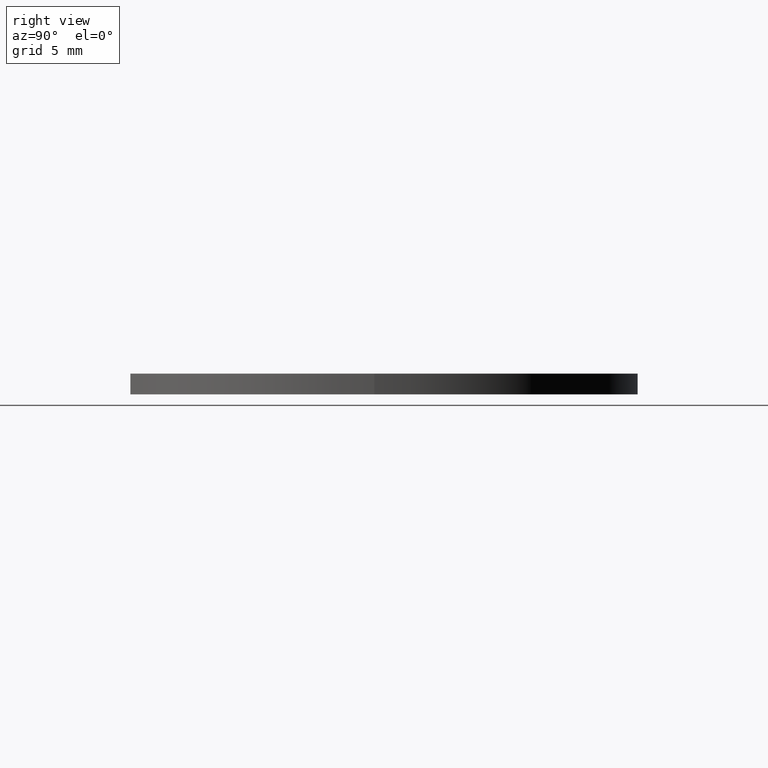
[diagram: clean part render]
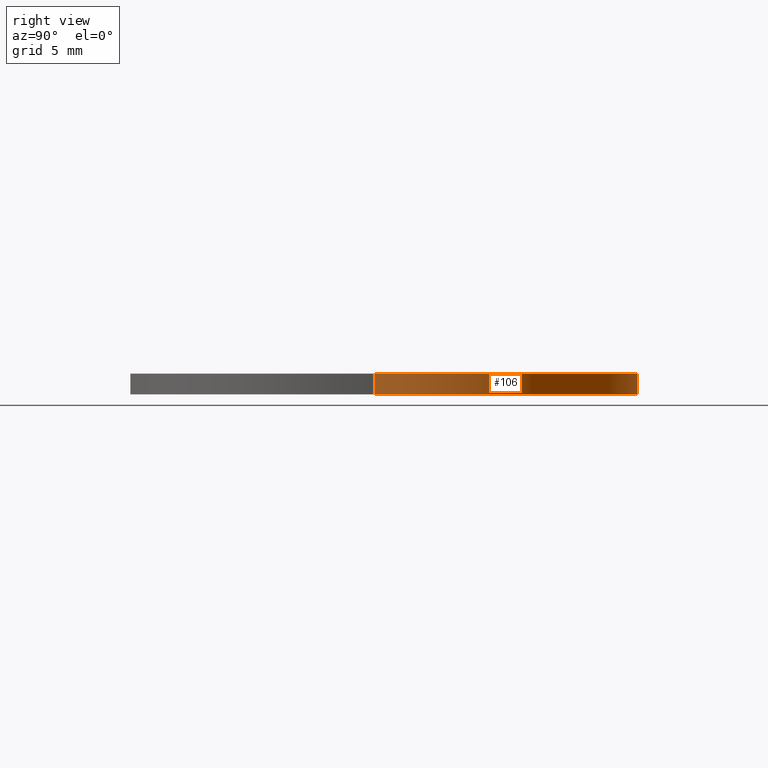
[diagram: same view with one face highlighted and labeled with its STEP entity id]
A machine part, right view. The second image highlights one B-rep face of the part: STEP entity #106.
In plain terms, the highlighted cylindrical surface (partial cylindrical patch) has radius 12.7 mm, axis along (-0, -0, -1).
Its self-contained STEP definition (entity closure, byte-faithful):
#5 = ORIENTED_EDGE ( 'NONE', *, *, #39, .F. ) ;
#8 = DIRECTION ( 'NONE',  ( 0.0000000000000000000, 0.0000000000000000000, 1.000000000000000000 ) ) ;
#12 = ORIENTED_EDGE ( 'NONE', *, *, #77, .T. ) ;
#14 = CARTESIAN_POINT ( 'NONE',  ( 0.0000000000000000000, 0.0000000000000000000, 0.0000000000000000000 ) ) ;
#20 = ORIENTED_EDGE ( 'NONE', *, *, #173, .F. ) ;
#36 = CARTESIAN_POINT ( 'NONE',  ( -12.69999999999999929, 0.0000000000000000000, 0.0000000000000000000 ) ) ;
#39 = EDGE_CURVE ( 'NONE', #71, #168, #190, .T. ) ;
#44 = FACE_OUTER_BOUND ( 'NONE', #69, .T. ) ;
#51 = CARTESIAN_POINT ( 'NONE',  ( -12.69999999999999929, 0.0000000000000000000, 1.000000000000000000 ) ) ;
#60 = CARTESIAN_POINT ( 'NONE',  ( 0.0000000000000000000, 0.0000000000000000000, 1.000000000000000000 ) ) ;
#61 = DIRECTION ( 'NONE',  ( 0.0000000000000000000, 0.0000000000000000000, 1.000000000000000000 ) ) ;
#69 = EDGE_LOOP ( 'NONE', ( #5, #12, #205, #20 ) ) ;
#71 = VERTEX_POINT ( 'NONE', #201 ) ;
#77 = EDGE_CURVE ( 'NONE', #71, #179, #119, .T. ) ;
#86 = CYLINDRICAL_SURFACE ( 'NONE', #87, 12.69999999999999929 ) ;
#87 = AXIS2_PLACEMENT_3D ( 'NONE', #60, #171, #204 ) ;
#94 = AXIS2_PLACEMENT_3D ( 'NONE', #117, #8, #153 ) ;
#95 = LINE ( 'NONE', #163, #175 ) ;
#98 = AXIS2_PLACEMENT_3D ( 'NONE', #14, #61, #125 ) ;
#106 = ADVANCED_FACE ( 'NONE', ( #44 ), #86, .T. ) ;
#117 = CARTESIAN_POINT ( 'NONE',  ( 0.0000000000000000000, 0.0000000000000000000, 1.000000000000000000 ) ) ;
#119 = LINE ( 'NONE', #184, #155 ) ;
#125 = DIRECTION ( 'NONE',  ( 1.000000000000000000, 0.0000000000000000000, 0.0000000000000000000 ) ) ;
#130 = CIRCLE ( 'NONE', #98, 12.69999999999999929 ) ;
#150 = EDGE_CURVE ( 'NONE', #179, #203, #130, .T. ) ;
#151 = DIRECTION ( 'NONE',  ( -0.0000000000000000000, -0.0000000000000000000, -1.000000000000000000 ) ) ;
#153 = DIRECTION ( 'NONE',  ( 1.000000000000000000, 0.0000000000000000000, 0.0000000000000000000 ) ) ;
#155 = VECTOR ( 'NONE', #151, 1000.000000000000000 ) ;
#163 = CARTESIAN_POINT ( 'NONE',  ( -12.69999999999999929, 0.0000000000000000000, 1.000000000000000000 ) ) ;
#168 = VERTEX_POINT ( 'NONE', #51 ) ;
#171 = DIRECTION ( 'NONE',  ( -0.0000000000000000000, -0.0000000000000000000, -1.000000000000000000 ) ) ;
#173 = EDGE_CURVE ( 'NONE', #168, #203, #95, .T. ) ;
#175 = VECTOR ( 'NONE', #177, 1000.000000000000000 ) ;
#177 = DIRECTION ( 'NONE',  ( -0.0000000000000000000, -0.0000000000000000000, -1.000000000000000000 ) ) ;
#179 = VERTEX_POINT ( 'NONE', #194 ) ;
#184 = CARTESIAN_POINT ( 'NONE',  ( 12.69999999999999929, 1.555301434917138433E-15, 1.000000000000000000 ) ) ;
#190 = CIRCLE ( 'NONE', #94, 12.69999999999999929 ) ;
#194 = CARTESIAN_POINT ( 'NONE',  ( 12.69999999999999929, 1.555301434917138433E-15, 0.0000000000000000000 ) ) ;
#201 = CARTESIAN_POINT ( 'NONE',  ( 12.69999999999999929, 1.555301434917138433E-15, 1.000000000000000000 ) ) ;
#203 = VERTEX_POINT ( 'NONE', #36 ) ;
#204 = DIRECTION ( 'NONE',  ( -1.000000000000000000, 0.0000000000000000000, 0.0000000000000000000 ) ) ;
#205 = ORIENTED_EDGE ( 'NONE', *, *, #150, .T. ) ;